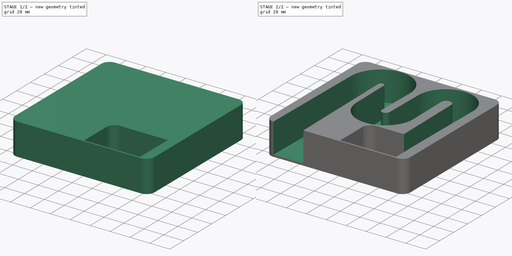
[diagram: build sequence overview — one tinted view per stage of 2, left to right]
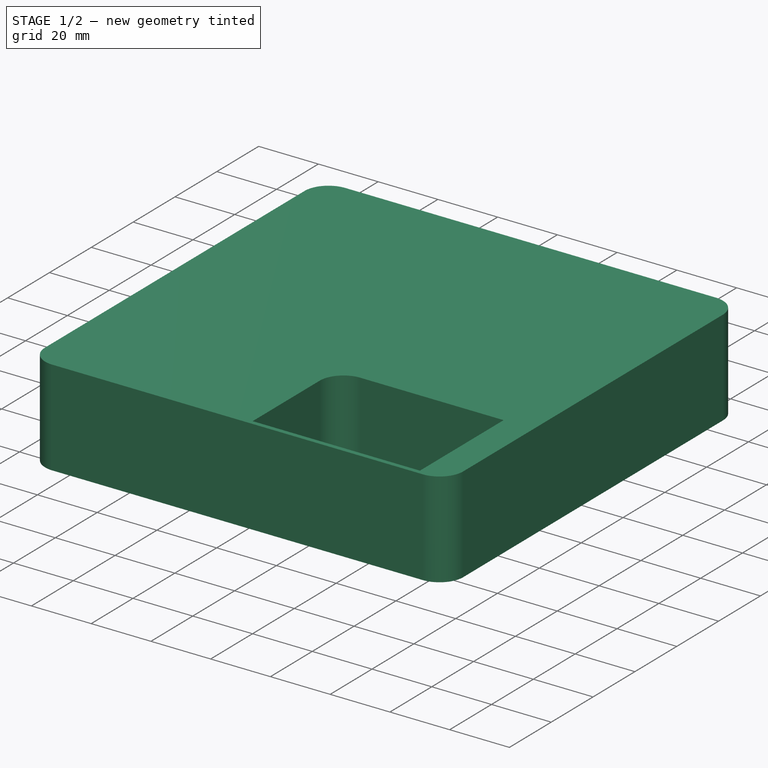
[diagram: stage 1 of 2 — iso view after this stage's code; geometry added in this stage tinted green]
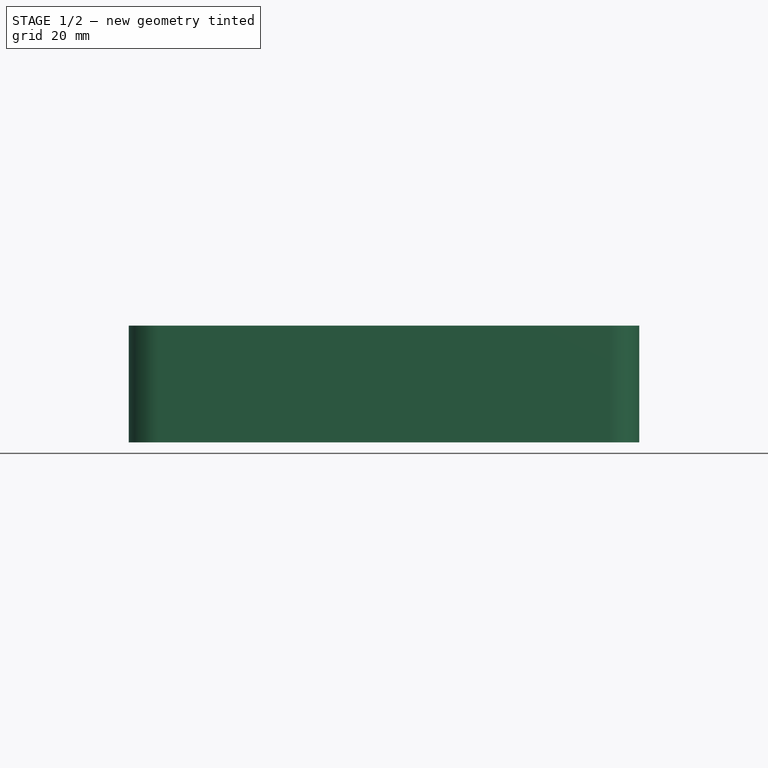
[diagram: stage 1 of 2 — front view after this stage's code; geometry added in this stage tinted green]
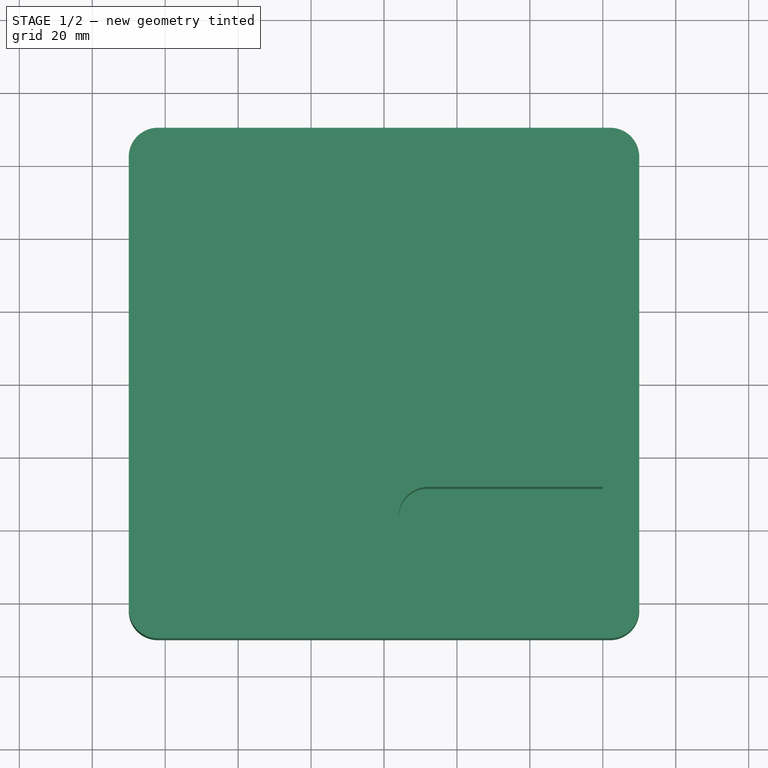
[diagram: stage 1 of 2 — top view after this stage's code; geometry added in this stage tinted green]
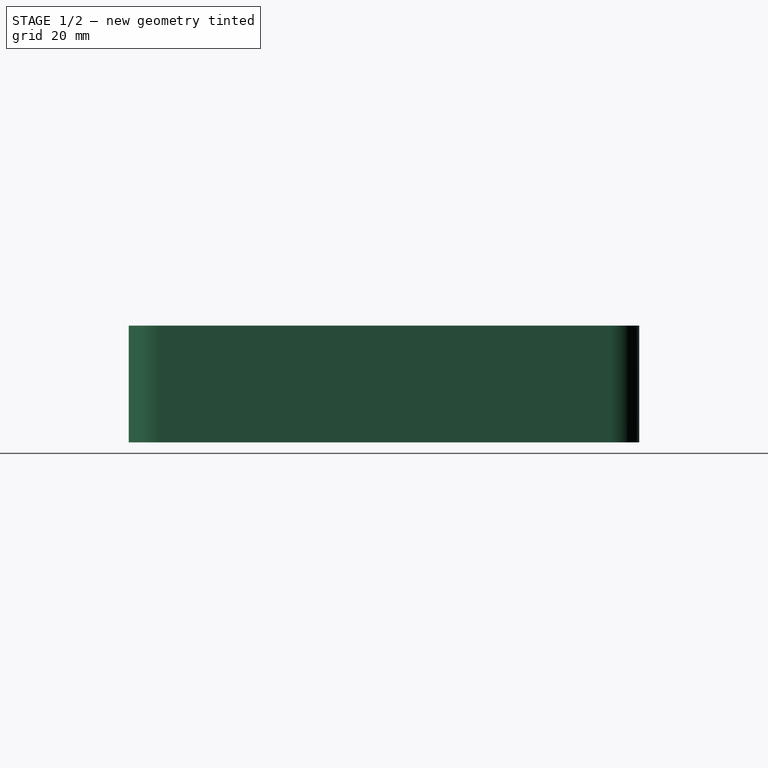
[diagram: stage 1 of 2 — right view after this stage's code; geometry added in this stage tinted green]
FCSTD DOCUMENT  (FreeCAD 0.20R29410 (Git))
Label: _SpeakerBox
License: Creative Commons Attribution
LicenseURL: http://creativecommons.org/licenses/by/4.0/
objects: Sketcher::SketchObject×5, PartDesign::Pad×1, Part::Feature×1, PartDesign::Pocket×1, PartDesign::SubtractivePipe×1, PartDesign::Body×1
note: 13 computed .brp shape members not serialized (recipe doc carries the construction recipe); baked Part::Feature solids carry a one-line shape summary decoded from their .brp

FEATURE [Sketcher::SketchObject] Sketch
  FullyConstrained = true
  MapMode = 5
  Support = -> [XY_Plane]
  sketch-geometry (9):
    g0: LineSegment StartX=70 StartY=-62 StartZ=0 EndX=70 EndY=62 EndZ=0
    g1: LineSegment StartX=62 StartY=70 StartZ=0 EndX=-62 EndY=70 EndZ=0
    g2: LineSegment StartX=-70 StartY=62 StartZ=0 EndX=-70 EndY=-62 EndZ=0
    g3: LineSegment StartX=-62 StartY=-70 StartZ=0 EndX=62 EndY=-70 EndZ=0
    g4: GeomPoint X=0 Y=0 Z=0
    g5: ArcOfCircle CenterX=-62 CenterY=62 CenterZ=0 NormalX=0 NormalY=0 NormalZ=1 AngleXU=0 Radius=8 StartAngle=1.5708 EndAngle=3.14159
    g6: ArcOfCircle CenterX=62 CenterY=62 CenterZ=0 NormalX=0 NormalY=0 NormalZ=1 AngleXU=0 Radius=8 StartAngle=0 EndAngle=1.5708
    g7: ArcOfCircle CenterX=62 CenterY=-62 CenterZ=0 NormalX=0 NormalY=0 NormalZ=1 AngleXU=0 Radius=8 StartAngle=4.71239 EndAngle=6.28319
    g8: ArcOfCircle CenterX=-62 CenterY=-62 CenterZ=0 NormalX=0 NormalY=0 NormalZ=1 AngleXU=0 Radius=8 StartAngle=3.14159 EndAngle=4.71239
  constraints (20):
    c: Horizontal(g1)
    c: Horizontal(g3)
    c: Vertical(g0)
    c: Vertical(g2)
    c: Coincident(g4,g-1)
    c: Tangent(g1,g5) = -1.5708
    c: Tangent(g2,g5) = -1.5708
    c: Tangent(g0,g6) = -1.5708
    c: Tangent(g1,g6) = -1.5708
    c: Tangent(g0,g7) = -1.5708
    c: Tangent(g3,g7) = -1.5708
    c: Tangent(g2,g8) = -1.5708
    c: Tangent(g3,g8) = -1.5708
    c: Equal(g5,g6)
    c: Equal(g6,g7)
    c: Equal(g7,g8)
    c: Equal(g1,g2)
    c: Symmetric(g6,g8,g4)
    c: Radius(g6) = 8
    c: DistanceX(g2,g0) = 140
FEATURE [PartDesign::Pad] Pad
  Direction = (0,0,1)
  Length = 32
  Length2 = 10
  Profile = -> Sketch
  ReferenceAxis = -> Sketch [N_Axis]
  Type = 0
FEATURE [Part::Feature] Body001  label="Speaker"
  Placement = pos=(32,-70,32) rot=(0,-0.707107,-0.707107;3.14159rad)
  shape: bbox 56 x 11 x 56 mm, 9 faces (baked)
FEATURE [Sketcher::SketchObject] Sketch001
  AttachmentOffset = pos=(0,0,32) rot=(0,0,1;0rad)
  ExternalGeometry = -> [Sketch]
  FullyConstrained = true
  MapMode = 5
  Placement = pos=(0,0,32) rot=(0,0,1;0rad)
  Support = -> [XY_Plane]
  expr: .AttachmentOffset.Base.z = Pad.Length
  sketch-geometry (6):
    g0: LineSegment StartX=12 StartY=-28.5 StartZ=0 EndX=60 EndY=-28.5 EndZ=0
    g1: LineSegment StartX=60 StartY=-28.5 StartZ=0 EndX=60 EndY=-68.5 EndZ=0
    g2: LineSegment StartX=60 StartY=-68.5 StartZ=0 EndX=4 EndY=-68.5 EndZ=0
    g3: LineSegment StartX=4 StartY=-68.5 StartZ=0 EndX=4 EndY=-36.5 EndZ=0
    g4: LineSegment StartX=32 StartY=-28.5 StartZ=0 EndX=32 EndY=-68.5 EndZ=0
    g5: ArcOfCircle CenterX=12 CenterY=-36.5 CenterZ=0 NormalX=0 NormalY=0 NormalZ=1 AngleXU=0 Radius=8 StartAngle=1.5708 EndAngle=3.14159
  constraints (18):
    c: Coincident(g1,g2)
    c: Coincident(g2,g3)
    c: Horizontal(g0)
    c: Horizontal(g2)
    c: Vertical(g1)
    c: Vertical(g3)
    c: DistanceX(g2,g2) = 56
    c: PointOnObject(g4,g0)
    c: DistanceX(g-1,g4) = 32
    c: Symmetric(g1,g2,g4)
    c: DistanceY(g1,g0) = 40
    c: DistanceY(g-3,g2) = 1.5
    c: PointOnObject(g4,g2)
    c: Tangent(g0,g5) = 1.5708
    c: Tangent(g3,g5) = 1.5708
    c: Coincident(g1,g0)
    c: Radius(g5) = 8
    c: DistanceY(g0,g-1) = 28.5
FEATURE [PartDesign::Pocket] Pocket
  BaseFeature = -> Pad
  Direction = (0,0,-1)
  Length = 30
  Length2 = 5
  Profile = -> Sketch001
  ReferenceAxis = -> Sketch001 [N_Axis]
  Type = 0
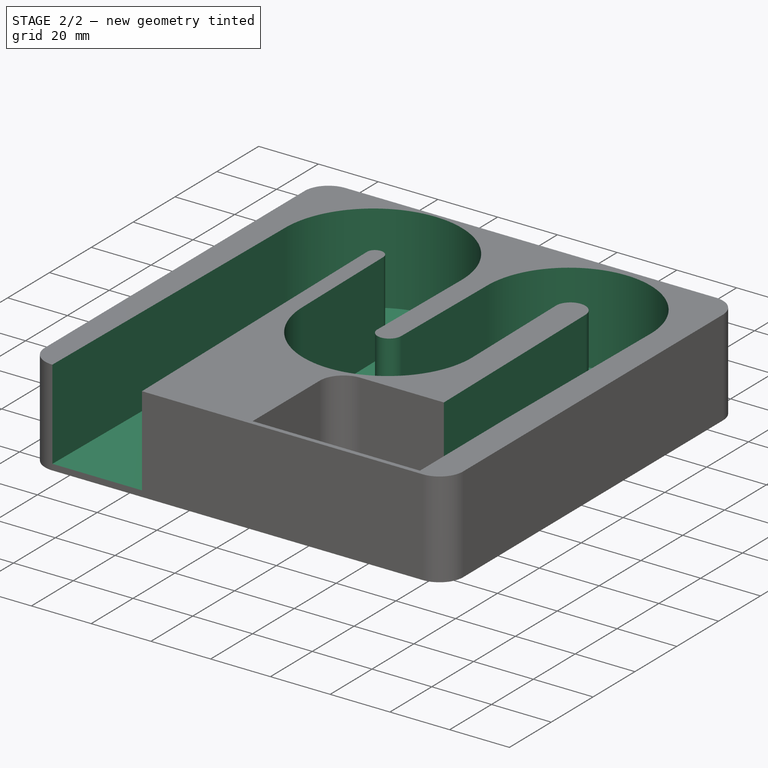
[diagram: stage 2 of 2 — iso view after this stage's code; geometry added in this stage tinted green]
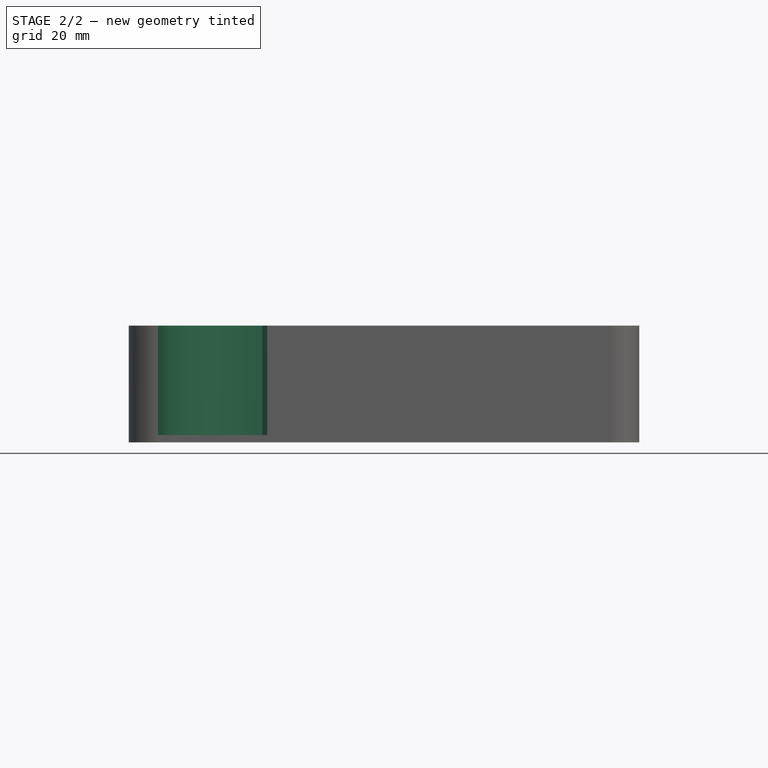
[diagram: stage 2 of 2 — front view after this stage's code; geometry added in this stage tinted green]
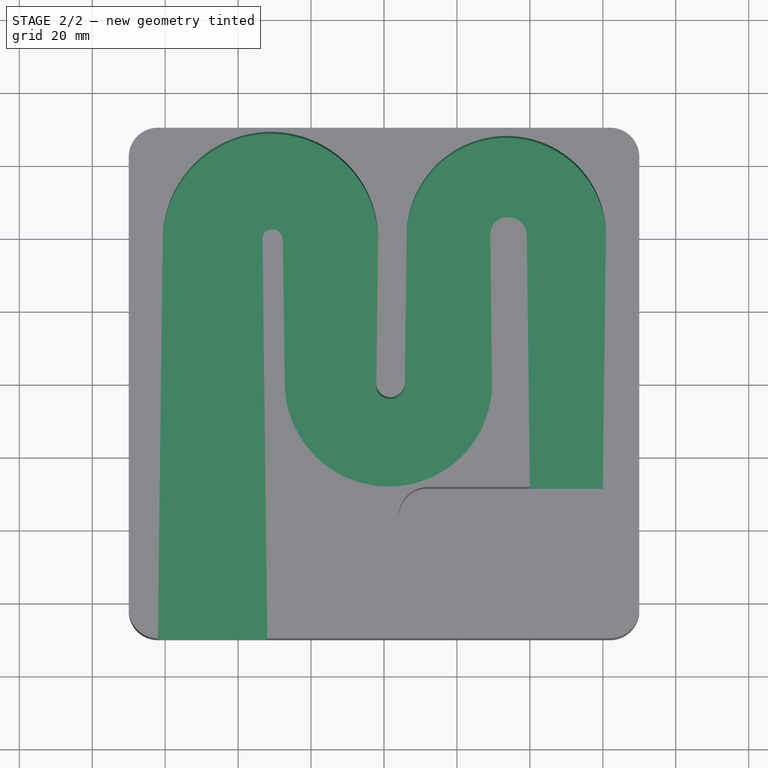
[diagram: stage 2 of 2 — top view after this stage's code; geometry added in this stage tinted green]
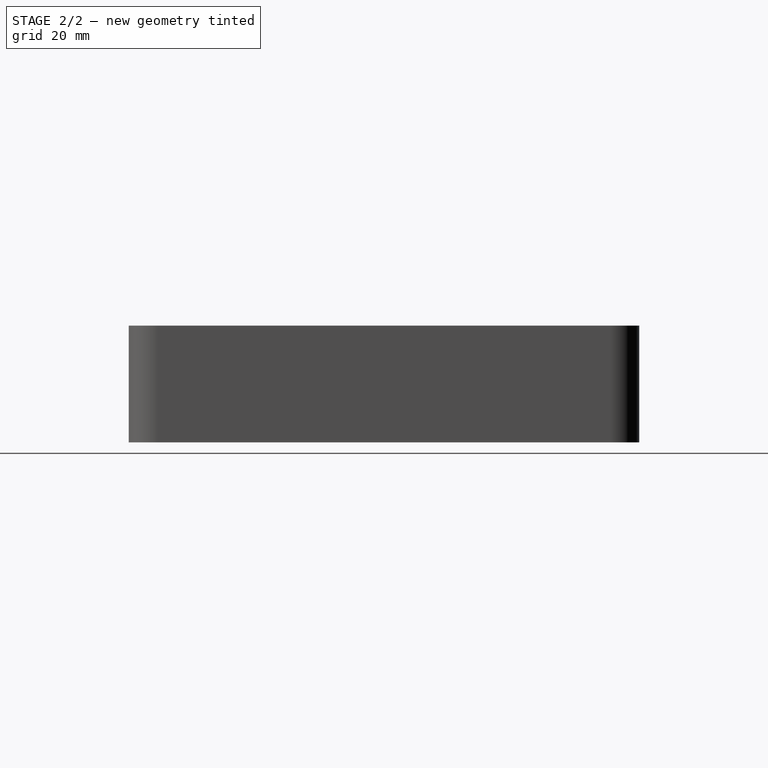
[diagram: stage 2 of 2 — right view after this stage's code; geometry added in this stage tinted green]
FEATURE [Sketcher::SketchObject] Sketch003
  AttachmentOffset = pos=(0,0,28.5) rot=(0,0,1;0rad)
  ExternalGeometry = -> [Sketch001]
  FullyConstrained = true
  MapMode = 5
  Placement = pos=(0,-28.5,6.3e-15) rot=(1,0,0;1.5708rad)
  Support = -> [XZ_Plane]
  sketch-geometry (4):
    g0: LineSegment StartX=40 StartY=32 StartZ=0 EndX=60 EndY=32 EndZ=0
    g1: LineSegment StartX=60 StartY=32 StartZ=0 EndX=60 EndY=2 EndZ=0
    g2: LineSegment StartX=60 StartY=2 StartZ=0 EndX=40 EndY=2 EndZ=0
    g3: LineSegment StartX=40 StartY=2 StartZ=0 EndX=40 EndY=32 EndZ=0
  constraints (11):
    c: Coincident(g0,g1)
    c: Coincident(g1,g2)
    c: Coincident(g2,g3)
    c: Coincident(g3,g0)
    c: Horizontal(g0)
    c: Horizontal(g2)
    c: Vertical(g1)
    c: Vertical(g3)
    c: DistanceX(g0,g0) = 20
    c: DistanceY(g-1,g1) = 2
    c: Coincident(g0,g-3)
FEATURE [Sketcher::SketchObject] Sketch004
  AttachmentOffset = pos=(0,0,70) rot=(0,0,1;0rad)
  ExternalGeometry = -> [Sketch001,Sketch]
  FullyConstrained = true
  MapMode = 5
  Placement = pos=(0,-70,1.55e-14) rot=(1,0,0;1.5708rad)
  Support = -> [XZ_Plane]
  sketch-geometry (4):
    g0: LineSegment StartX=-62 StartY=32 StartZ=0 EndX=-32 EndY=32 EndZ=0
    g1: LineSegment StartX=-32 StartY=32 StartZ=0 EndX=-32 EndY=2 EndZ=0
    g2: LineSegment StartX=-32 StartY=2 StartZ=0 EndX=-62 EndY=2 EndZ=0
    g3: LineSegment StartX=-62 StartY=2 StartZ=0 EndX=-62 EndY=32 EndZ=0
  constraints (12):
    c: Coincident(g0,g1)
    c: Coincident(g1,g2)
    c: Coincident(g2,g3)
    c: Coincident(g3,g0)
    c: Horizontal(g0)
    c: Horizontal(g2)
    c: Vertical(g1)
    c: Vertical(g3)
    c: DistanceY(g-1,g2) = 2
    c: Horizontal(g-3,g0)
    c: DistanceX(g0,g0) = 30
    c: Vertical(g2,g-4)
FEATURE [Sketcher::SketchObject] Sketch002
  AttachmentOffset = pos=(0,0,32) rot=(0,0,1;0rad)
  ExternalGeometry = -> [Sketch004,Sketch003]
  FullyConstrained = false
  MapMode = 5
  Placement = pos=(0,0,32) rot=(0,0,1;0rad)
  Support = -> [XY_Plane]
  expr: .AttachmentOffset.Base.z = Pad.Length
  sketch-geometry (7):
    g0: LineSegment StartX=-47 StartY=-70 StartZ=0 EndX=-47 EndY=39.3333 EndZ=0
    g1: ArcOfCircle CenterX=-30.8333 CenterY=39.3333 CenterZ=0 NormalX=0 NormalY=0 NormalZ=1 AngleXU=0 Radius=16.1667 StartAngle=3e-16 EndAngle=3.14159
    g2: LineSegment StartX=-14.6667 StartY=39.3333 StartZ=0 EndX=-14.6667 EndY=0.0261627 EndZ=0
    g3: ArcOfCircle CenterX=1.5 CenterY=0.0261627 CenterZ=0 NormalX=0 NormalY=0 NormalZ=1 AngleXU=0 Radius=16.1667 StartAngle=3.14159 EndAngle=6.28319
    g4: LineSegment StartX=17.6667 StartY=0.0261627 StartZ=0 EndX=17.6667 EndY=40.4405 EndZ=0
    g5: ArcOfCircle CenterX=33.8333 CenterY=40.4405 CenterZ=0 NormalX=0 NormalY=0 NormalZ=1 AngleXU=0 Radius=16.1667 StartAngle=2e-16 EndAngle=3.14159
    g6: LineSegment StartX=50 StartY=40.4405 StartZ=0 EndX=50 EndY=-28.5 EndZ=0
  constraints (14):
    c: Vertical(g0)
    c: Tangent(g0,g1) = 1.5708
    c: Tangent(g1,g2) = 1.5708
    c: Tangent(g2,g3) = -1.5708
    c: Tangent(g3,g4) = -1.5708
    c: Tangent(g4,g5) = 1.5708
    c: Tangent(g5,g6) = 1.5708
    c: Vertical(g6)
    c: Vertical(g4)
    c: Vertical(g2)
    c: Equal(g3,g1)
    c: Equal(g1,g5)
    c: Symmetric(g-3,g-3,g0)
    c: Symmetric(g-4,g-4,g6)
FEATURE [PartDesign::SubtractivePipe] SubtractivePipe
  AuxilleryCurvelinear = true
  AuxillerySpineTangent = false
  BaseFeature = -> Pocket
  Binormal = (0,0,0)
  Mode = 0
  Profile = -> Sketch003
  Sections = -> [Sketch004]
  Spine = -> Sketch002
  SpineTangent = false
  Transformation = 1
  Transition = 0
FEATURE [PartDesign::Body] Body
  Group = -> [Sketch,Pad,Sketch001,Pocket,Sketch002,Sketch003,Sketch004,SubtractivePipe]
  Origin = -> Origin
  Tip = -> SubtractivePipe
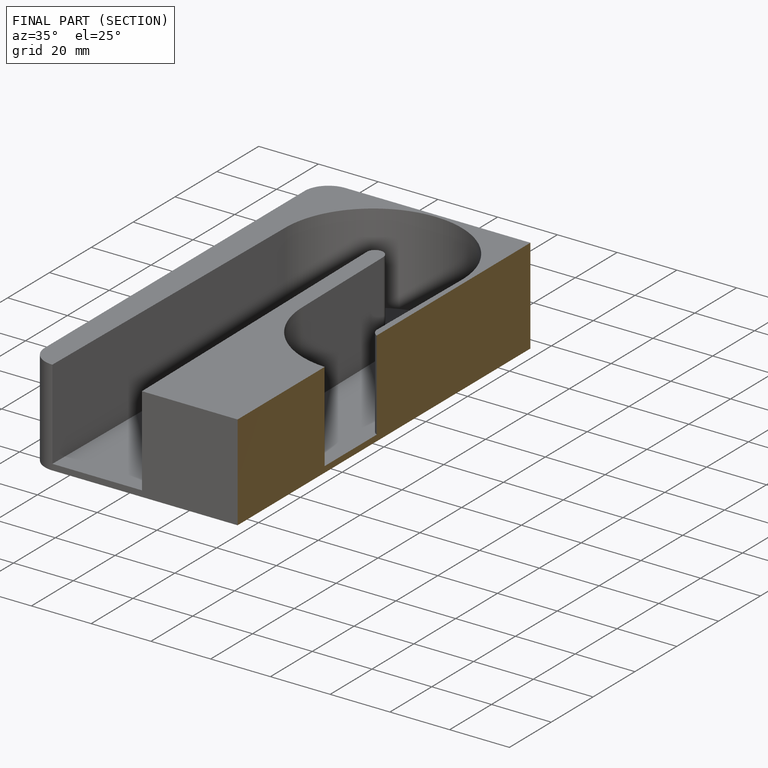
[diagram: finished part — half-section view (interior)]
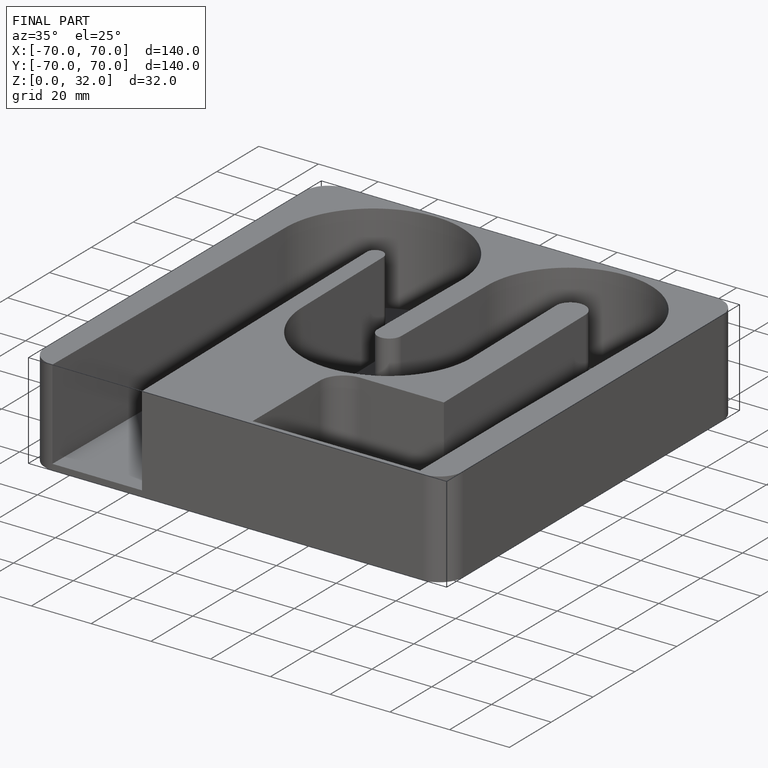
[diagram: finished part — iso view with bounding-box wireframe]
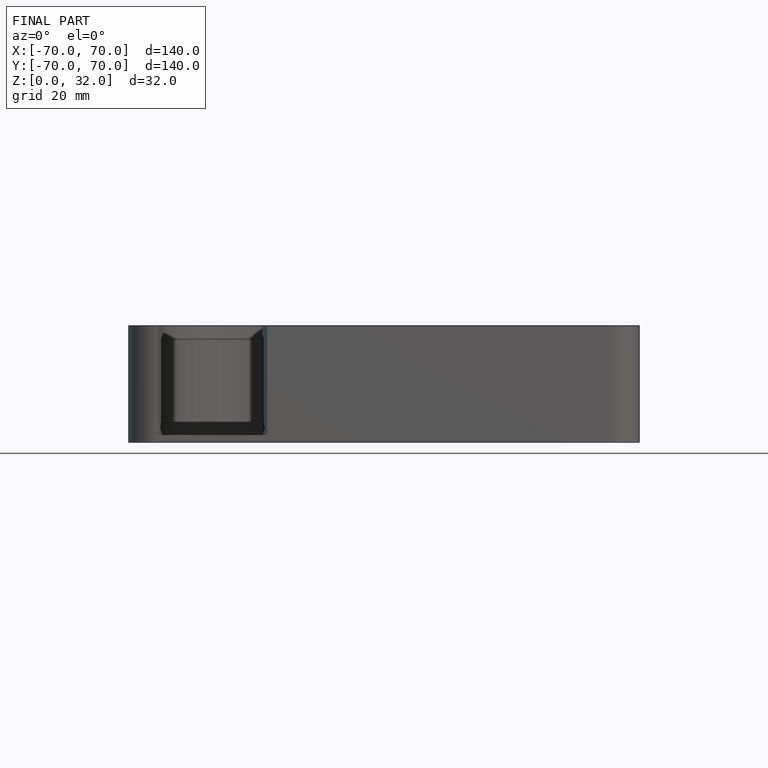
[diagram: finished part — front view with bounding-box wireframe]
